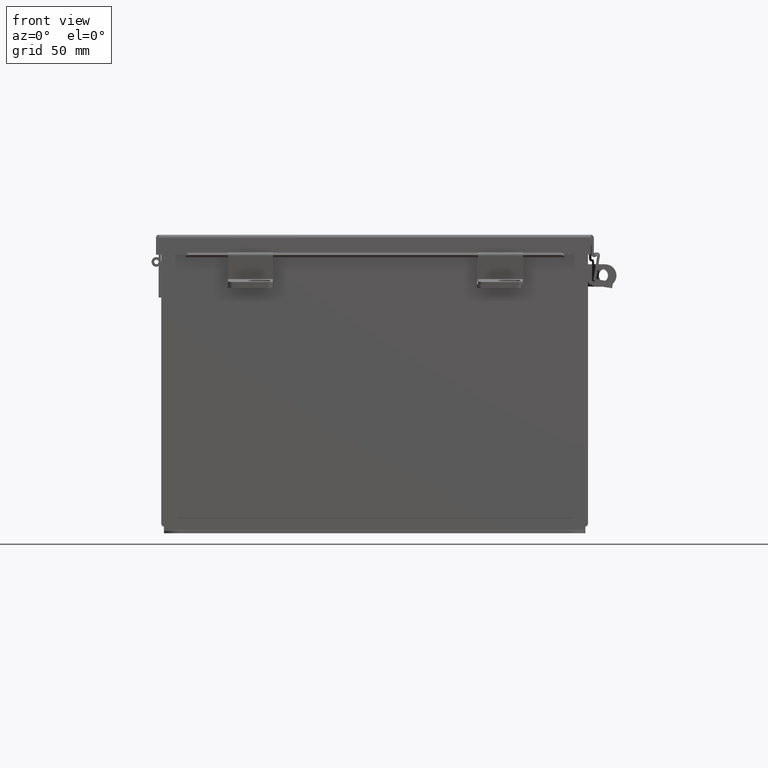
[diagram: clean part render]
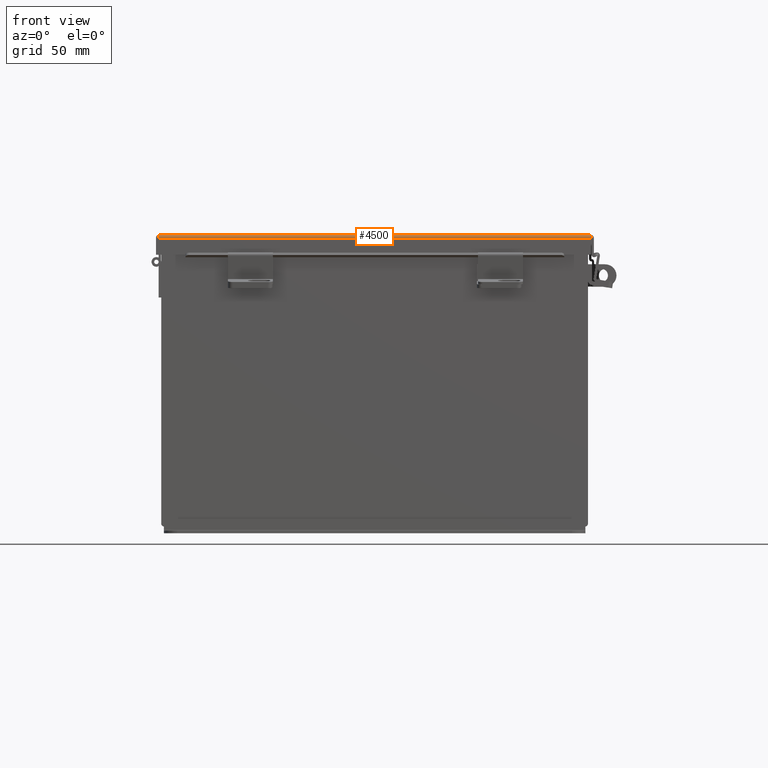
[diagram: same view with one face highlighted and labeled with its STEP entity id]
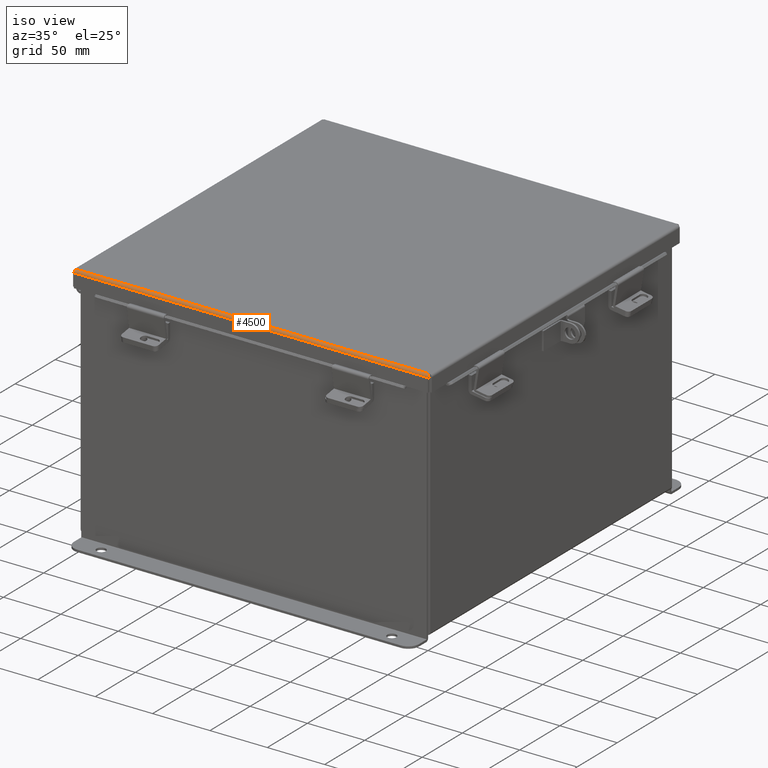
[diagram: same view with one face highlighted and labeled with its STEP entity id]
A machine part, front view. The second image highlights one B-rep face of the part: STEP entity #4500.
A second angle (iso view) of the same face is appended — the face is thin or edge-on in the first view.
In plain terms, the highlighted cylindrical surface (edge-blend (fillet) strip) has radius 2.2276 mm, axis along (-1, 0, -0).
Its self-contained STEP definition (entity closure, byte-faithful):
#15 = VECTOR ( 'NONE', #13832, 39.37007874015748100 ) ;
#423 = LINE ( 'NONE', #10350, #15 ) ;
#695 = VERTEX_POINT ( 'NONE', #16583 ) ;
#710 = CYLINDRICAL_SURFACE ( 'NONE', #16343, 0.08770000000000026400 ) ;
#796 = EDGE_CURVE ( 'NONE', #12129, #7359, #423, .T. ) ;
#1475 = EDGE_CURVE ( 'NONE', #7359, #13325, #11647, .T. ) ;
#1523 = ORIENTED_EDGE ( 'NONE', *, *, #11107, .T. ) ;
#2380 = CARTESIAN_POINT ( 'NONE',  ( -6.072502621458759200, -6.145181066258667900, -0.03116738457852800300 ) ) ;
#2406 = B_SPLINE_CURVE_WITH_KNOTS ( 'NONE', 3,
 ( #15517, #5768, #5709, #4465, #11536, #6251, #7530, #6459, #11283, #14670 ),
 .UNSPECIFIED., .F., .F.,
 ( 4, 2, 2, 2, 4 ),
 ( 0.0000000000000000000, 0.2500000000000000000, 0.5000000000000000000, 0.7500000000000000000, 1.000000000000000000 ),
 .UNSPECIFIED. ) ;
#2628 = CARTESIAN_POINT ( 'NONE',  ( -6.068550000000000100, -6.068550000000000100, -0.07469999999999993300 ) ) ;
#2744 = VECTOR ( 'NONE', #8987, 39.37007874015748100 ) ;
#2964 = EDGE_LOOP ( 'NONE', ( #12417, #6902, #1523, #5617 ) ) ;
#4465 = CARTESIAN_POINT ( 'NONE',  ( 6.072502621458756500, -6.145181066258666100, -0.03116738457852799900 ) ) ;
#4500 = ADVANCED_FACE ( 'NONE', ( #8902 ), #710, .T. ) ;
#4604 = DIRECTION ( 'NONE',  ( 0.0000000000000000000, -1.000000000000000000, -4.477801015840783100E-015 ) ) ;
#5422 = EDGE_CURVE ( 'NONE', #695, #12129, #2406, .T. ) ;
#5617 = ORIENTED_EDGE ( 'NONE', *, *, #1475, .F. ) ;
#5674 = CARTESIAN_POINT ( 'NONE',  ( -6.068550000000000100, -6.068550000000000100, -0.07469999999999993300 ) ) ;
#5709 = CARTESIAN_POINT ( 'NONE',  ( 6.073490776823450500, -6.153967403743811500, -0.009955289458309056500 ) ) ;
#5768 = CARTESIAN_POINT ( 'NONE',  ( 6.073984854505791700, -6.156249999999999100, 0.001520096845007091700 ) ) ;
#5786 = DIRECTION ( 'NONE',  ( 1.000000000000000000, -0.0000000000000000000, -0.0000000000000000000 ) ) ;
#6251 = CARTESIAN_POINT ( 'NONE',  ( 6.071020388411725800, -6.122445747341799000, -0.05713078207832041800 ) ) ;
#6409 = LINE ( 'NONE', #11727, #2744 ) ;
#6459 = CARTESIAN_POINT ( 'NONE',  ( 6.069538155364689700, -6.091505289458309500, -0.07241740374381121200 ) ) ;
#6902 = ORIENTED_EDGE ( 'NONE', *, *, #5422, .F. ) ;
#7359 = VERTEX_POINT ( 'NONE', #2628 ) ;
#7530 = CARTESIAN_POINT ( 'NONE',  ( 6.070526310729379200, -6.112717384578528100, -0.06363106625866837800 ) ) ;
#7792 = CARTESIAN_POINT ( 'NONE',  ( 6.068550000000000100, -6.068550000000000100, -0.07469999999999993300 ) ) ;
#7852 = CARTESIAN_POINT ( 'NONE',  ( -6.069044077682344900, -6.080029903154992300, -0.07469999999999994700 ) ) ;
#8902 = FACE_OUTER_BOUND ( 'NONE', #2964, .T. ) ;
#8987 = DIRECTION ( 'NONE',  ( -1.000000000000000000, 2.487713722829918300E-032, 1.089533968265403200E-046 ) ) ;
#10350 = CARTESIAN_POINT ( 'NONE',  ( 6.074478932188137400, -6.068550000000000100, -0.07469999999999993300 ) ) ;
#10698 = CARTESIAN_POINT ( 'NONE',  ( -6.070526310729377400, -6.112717384578525400, -0.06363106625866835100 ) ) ;
#11107 = EDGE_CURVE ( 'NONE', #695, #13325, #6409, .T. ) ;
#11283 = CARTESIAN_POINT ( 'NONE',  ( 6.069044077682344900, -6.080029903154993100, -0.07469999999999994700 ) ) ;
#11536 = CARTESIAN_POINT ( 'NONE',  ( 6.072008543776413500, -6.138680782078321100, -0.04089574734180010500 ) ) ;
#11647 = B_SPLINE_CURVE_WITH_KNOTS ( 'NONE', 3,
 ( #5674, #7852, #15911, #10698, #15770, #16468, #2380, #16869, #14145, #15660 ),
 .UNSPECIFIED., .F., .F.,
 ( 4, 2, 2, 2, 4 ),
 ( 0.0000000000000000000, 0.2500000000000000000, 0.5000000000000000000, 0.7500000000000000000, 1.000000000000000000 ),
 .UNSPECIFIED. ) ;
#11727 = CARTESIAN_POINT ( 'NONE',  ( -6.156249999999998200, -6.156250000000000000, 0.01299999999999978100 ) ) ;
#12129 = VERTEX_POINT ( 'NONE', #7792 ) ;
#12417 = ORIENTED_EDGE ( 'NONE', *, *, #796, .F. ) ;
#13325 = VERTEX_POINT ( 'NONE', #17493 ) ;
#13832 = DIRECTION ( 'NONE',  ( -1.000000000000000000, 0.0000000000000000000, 0.0000000000000000000 ) ) ;
#14145 = CARTESIAN_POINT ( 'NONE',  ( -6.073984854505791700, -6.156250000000000000, 0.001520096845007091700 ) ) ;
#14624 = CARTESIAN_POINT ( 'NONE',  ( 6.074478932188137400, -6.068550000000000100, 0.01300000000000016400 ) ) ;
#14670 = CARTESIAN_POINT ( 'NONE',  ( 6.068550000000000100, -6.068550000000000100, -0.07469999999999993300 ) ) ;
#15517 = CARTESIAN_POINT ( 'NONE',  ( 6.074478932188137400, -6.156250000000000000, 0.01299999999999978100 ) ) ;
#15660 = CARTESIAN_POINT ( 'NONE',  ( -6.074478932188137400, -6.156250000000000000, 0.01299999999999977400 ) ) ;
#15770 = CARTESIAN_POINT ( 'NONE',  ( -6.071020388411724000, -6.122445747341799900, -0.05713078207832041800 ) ) ;
#15911 = CARTESIAN_POINT ( 'NONE',  ( -6.069538155364688800, -6.091505289458310400, -0.07241740374381121200 ) ) ;
#16343 = AXIS2_PLACEMENT_3D ( 'NONE', #14624, #5786, #4604 ) ;
#16468 = CARTESIAN_POINT ( 'NONE',  ( -6.072008543776413500, -6.138680782078321100, -0.04089574734180011200 ) ) ;
#16583 = CARTESIAN_POINT ( 'NONE',  ( 6.074478932188137400, -6.156250000000000000, 0.01299999999999978100 ) ) ;
#16869 = CARTESIAN_POINT ( 'NONE',  ( -6.073490776823449600, -6.153967403743811500, -0.009955289458309054700 ) ) ;
#17493 = CARTESIAN_POINT ( 'NONE',  ( -6.074478932188137400, -6.156250000000000000, 0.01299999999999977400 ) ) ;